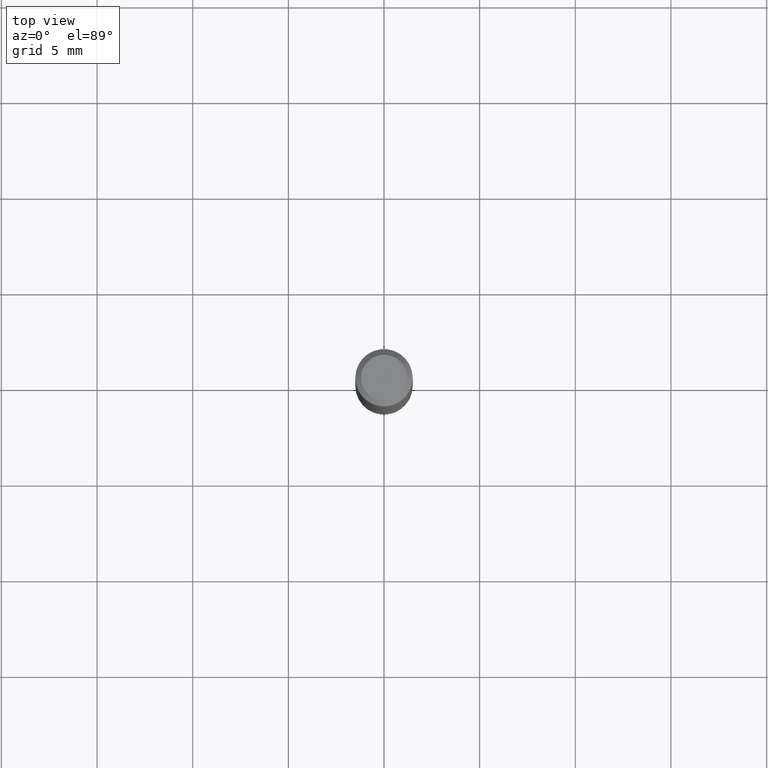
[diagram: clean part render]
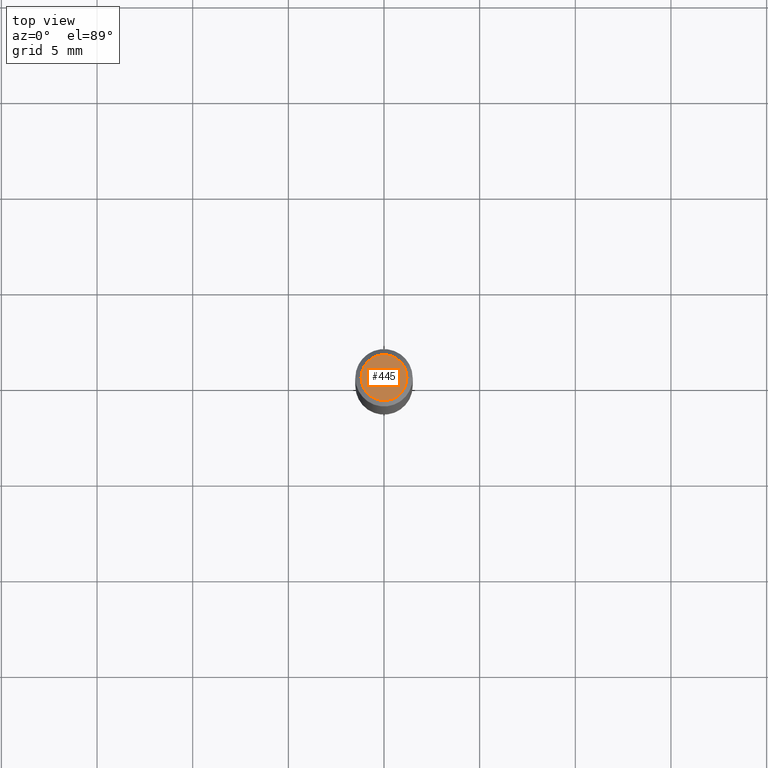
[diagram: same view with one face highlighted and labeled with its STEP entity id]
A machine part, top view. The second image highlights one B-rep face of the part: STEP entity #445.
In plain terms, the highlighted planar face has unit normal (0, -0, -1).
Its self-contained STEP definition (entity closure, byte-faithful):
#33 = DIRECTION ( 'NONE',  ( -1.000000000000000000, 6.982962677686265922E-15, -4.876176775795935793E-29 ) ) ;
#68 = PLANE ( 'NONE',  #252 ) ;
#80 = DIRECTION ( 'NONE',  ( 1.000000000000000000, -6.982962677686266711E-15, 4.876185090822587894E-29 ) ) ;
#92 = EDGE_CURVE ( 'NONE', #131, #186, #296, .T. ) ;
#116 = CARTESIAN_POINT ( 'NONE',  ( -0.04724000000000000421, 3.504923541997677355E-16, -3.380025165670481712E-19 ) ) ;
#131 = VERTEX_POINT ( 'NONE', #116 ) ;
#143 = AXIS2_PLACEMENT_3D ( 'NONE', #363, #147, #341 ) ;
#144 = DIRECTION ( 'NONE',  ( 2.438088387897960049E-29, -3.491481338843145188E-15, -1.000000000000000000 ) ) ;
#147 = DIRECTION ( 'NONE',  ( -2.445468806185136597E-29, 3.491481338843145583E-15, 1.000000000000000000 ) ) ;
#149 = CARTESIAN_POINT ( 'NONE',  ( 0.04724000000000000421, -3.852183633974369345E-16, -3.380025165621689721E-19 ) ) ;
#186 = VERTEX_POINT ( 'NONE', #149 ) ;
#221 = FACE_OUTER_BOUND ( 'NONE', #261, .T. ) ;
#232 = ORIENTED_EDGE ( 'NONE', *, *, #92, .T. ) ;
#252 = AXIS2_PLACEMENT_3D ( 'NONE', #402, #144, #33 ) ;
#261 = EDGE_LOOP ( 'NONE', ( #232, #323 ) ) ;
#296 = CIRCLE ( 'NONE', #319, 0.04724000000000000421 ) ;
#319 = AXIS2_PLACEMENT_3D ( 'NONE', #472, #332, #80 ) ;
#323 = ORIENTED_EDGE ( 'NONE', *, *, #480, .T. ) ;
#332 = DIRECTION ( 'NONE',  ( -2.445468806185136597E-29, 3.491481338843145583E-15, 1.000000000000000000 ) ) ;
#341 = DIRECTION ( 'NONE',  ( 1.000000000000000000, -6.982962677686266711E-15, 4.876185090822587894E-29 ) ) ;
#363 = CARTESIAN_POINT ( 'NONE',  ( 8.265746106709734507E-48, -1.180129479067563789E-33, -3.380025165646692144E-19 ) ) ;
#402 = CARTESIAN_POINT ( 'NONE',  ( 4.132873053354867254E-48, -5.900647395337818946E-34, -1.690012582823346072E-19 ) ) ;
#445 = ADVANCED_FACE ( 'NONE', ( #221 ), #68, .F. ) ;
#472 = CARTESIAN_POINT ( 'NONE',  ( 8.265746106709734507E-48, -1.180129479067563789E-33, -3.380025165646692144E-19 ) ) ;
#480 = EDGE_CURVE ( 'NONE', #186, #131, #484, .T. ) ;
#484 = CIRCLE ( 'NONE', #143, 0.04724000000000000421 ) ;